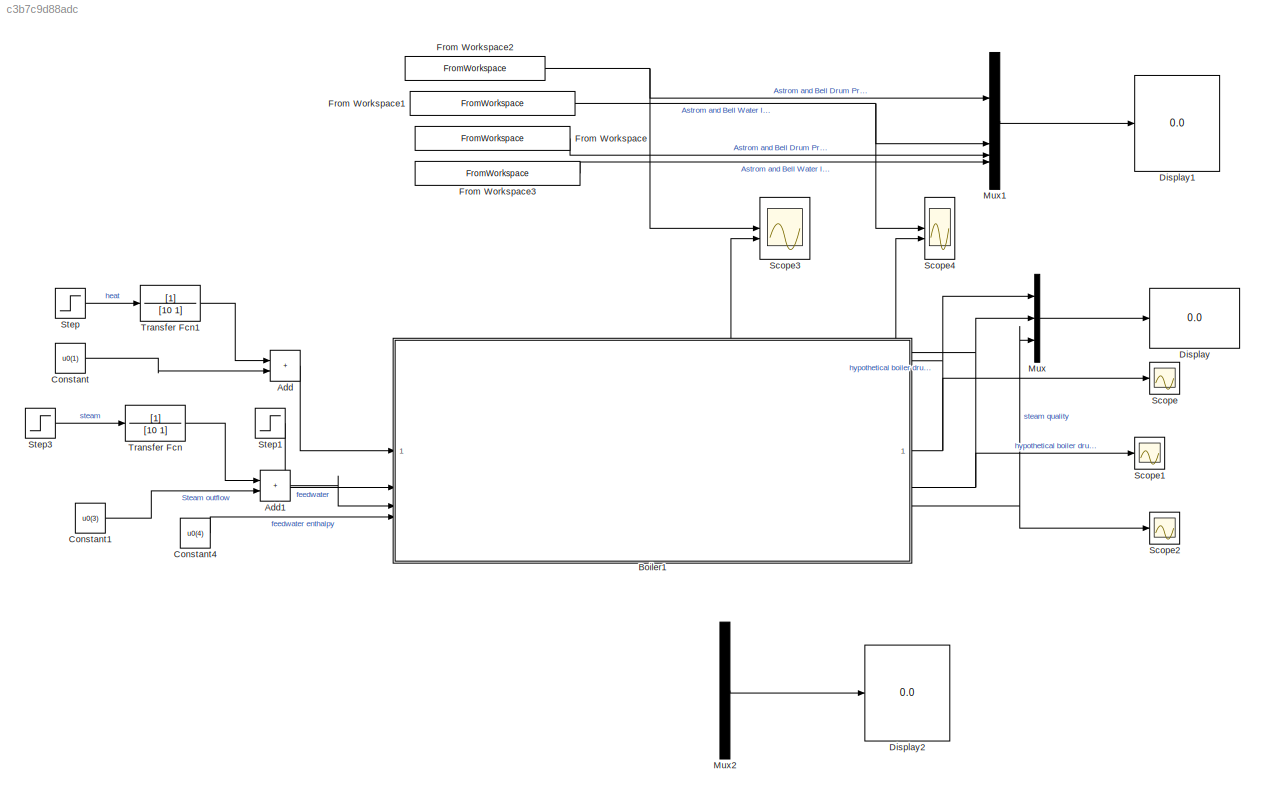
MODEL slx_c3b7c9d88adc
KIND model
CONFIG AbsTol = auto
CONFIG EnableMultiTasking = off
CONFIG FixedStep = 1000
CONFIG MaxStep = auto
CONFIG MinStep = auto
CONFIG RelTol = 1e-2
CONFIG SampleTimeConstraint = Unconstrained
CONFIG SolverName = ode15s
CONFIG StartTime = 0.0
CONFIG StopTime = 180
BLOCK [Sum] Add
  IconShape = rectangular
BLOCK [Sum] Add1
  IconShape = rectangular
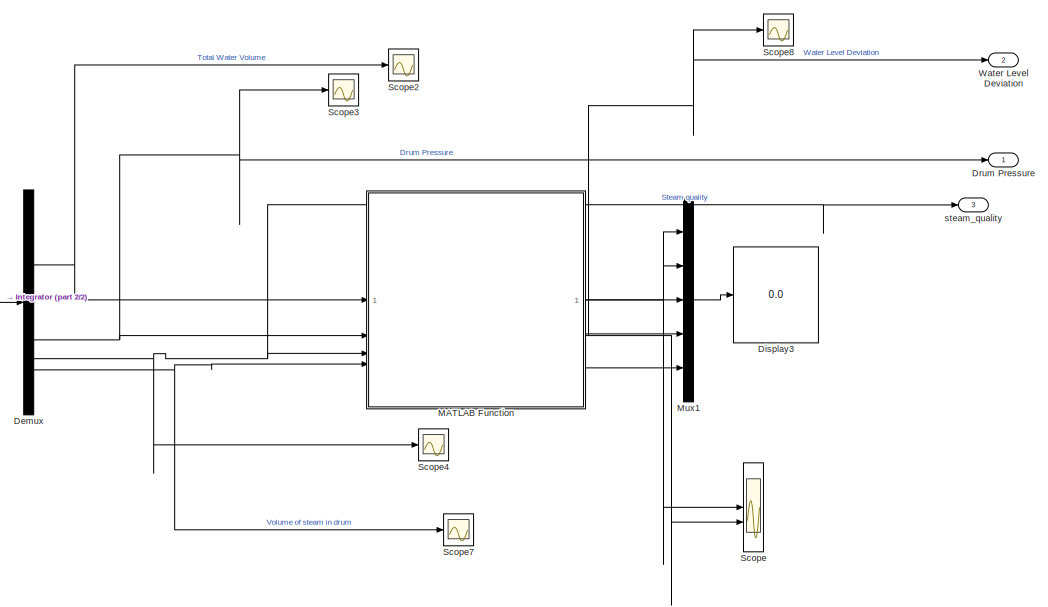
[diagram: Boiler1 - part 1/2, right side, full height]
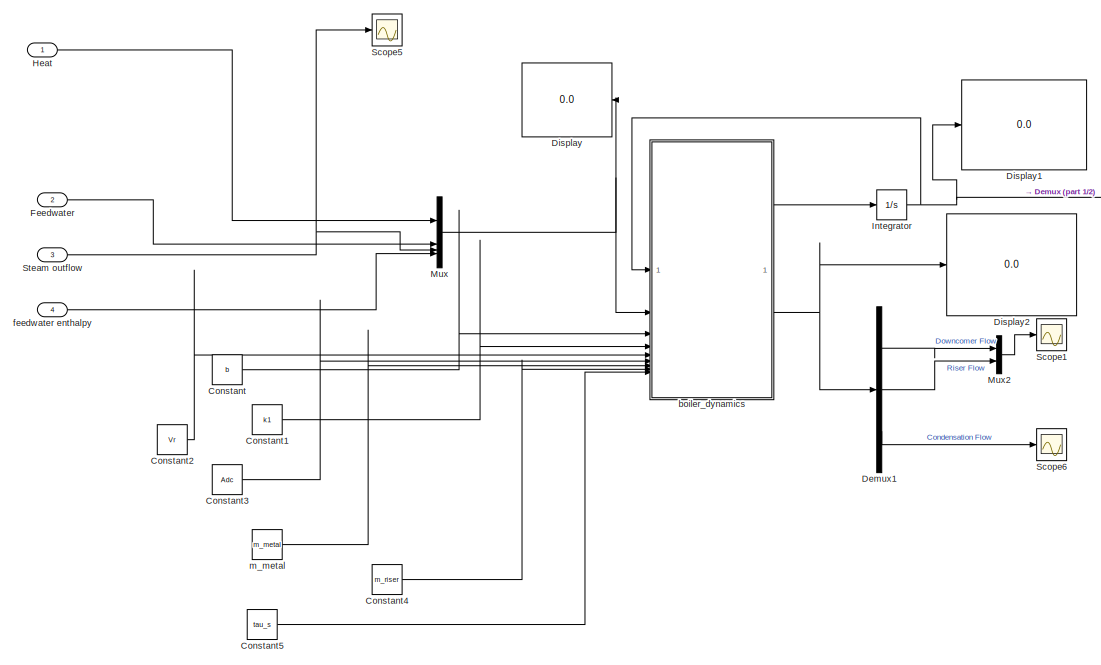
[diagram: Boiler1 - part 2/2, left side, full height]
BLOCK [SubSystem] Boiler1
BLOCK [Constant] Boiler1/Constant
  Value = b
BLOCK [Constant] Boiler1/Constant1
  Value = k1
BLOCK [Constant] Boiler1/Constant2
  Value = Vr
BLOCK [Constant] Boiler1/Constant3
  Value = Adc
BLOCK [Constant] Boiler1/Constant4
  Value = m_riser
BLOCK [Constant] Boiler1/Constant5
  Value = tau_s
BLOCK [Demux] Boiler1/Demux
BLOCK [Demux] Boiler1/Demux1
  Outputs = 3
BLOCK [Display] Boiler1/Display
  Decimation = 1
  Format = long
  NameLocation = top
BLOCK [Display] Boiler1/Display1
  Decimation = 1
  Format = long
BLOCK [Display] Boiler1/Display2
  Decimation = 1
BLOCK [Display] Boiler1/Display3
  Decimation = 1
BLOCK [Outport] Boiler1/Drum Pressure
BLOCK [Inport] Boiler1/Feedwater
  Port = 2
BLOCK [Inport] Boiler1/Heat
BLOCK [Integrator] Boiler1/Integrator
  InitialCondition = x0
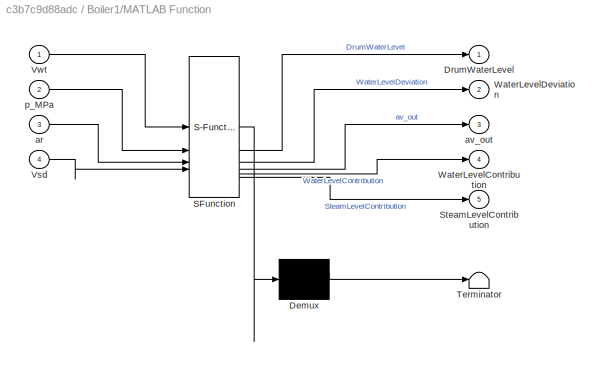
BLOCK [SubSystem] Boiler1/MATLAB Function
  ErrorFcn = Stateflow.Translate.translate
  PermitHierarchicalResolution = ExplicitOnly
  SFBlockType = MATLAB Function
  TreatAsAtomicUnit = on
BLOCK [Demux] Boiler1/MATLAB Function/ Demux 
  Outputs = 1
BLOCK [S-Function] Boiler1/MATLAB Function/ SFunction 
  EnableBusSupport = off
  FunctionName = sf_sfun
  PortCounts = [4 6]
  SFcnIsStateOwnerBlock = off
  SFunctionDeploymentMode = off
  Tag = Stateflow S-Function 1
BLOCK [Terminator] Boiler1/MATLAB Function/ Terminator 
BLOCK [Outport] Boiler1/MATLAB Function/DrumWaterLevel
BLOCK [Outport] Boiler1/MATLAB Function/SteamLevelContribution
  Port = 5
BLOCK [Inport] Boiler1/MATLAB Function/Vsd
  Port = 4
BLOCK [Inport] Boiler1/MATLAB Function/Vwt
BLOCK [Outport] Boiler1/MATLAB Function/WaterLevelContribution
  Port = 4
BLOCK [Outport] Boiler1/MATLAB Function/WaterLevelDeviation
  Port = 2
BLOCK [Inport] Boiler1/MATLAB Function/ar
  Port = 3
BLOCK [Outport] Boiler1/MATLAB Function/av_out
  Port = 3
BLOCK [Inport] Boiler1/MATLAB Function/p_MPa
  Port = 2
BLOCK [Mux] Boiler1/Mux
  DisplayOption = bar
BLOCK [Mux] Boiler1/Mux1
  DisplayOption = bar
  Inputs = 5
BLOCK [Mux] Boiler1/Mux2
  DisplayOption = bar
  Inputs = 2
BLOCK [Scope] Boiler1/Scope
  ActiveDisplayYMaximum = 0.97989716685186512
  ActiveDisplayYMinimum = -0.11553187271684388
  DataLoggingVariableName = ScopeData9
  Floating = off
  GraphicalSettings = {"Style":{"BackgroundColor":[0.12941176470588237,0.12941176470588237,0.12941176470588237],"AxesColor":[0.07058823529411765,0.07058823529411765,0.07058823529411765],"LabelsColor":[0.8509803921568627,0.8509803921568627,0.8509803921568627],"PreserveColors":false,"Visible":[true,true],"LineStyle":["-","-"],"LineWidth":[1.5,1.5],"BarWidth":[0.9,0.9],"LineColor":["auto","auto"],"LineFaceAlpha":[1,1],"Li...<+2188ch>
  MultipleDisplayCache = [{"MaxYLimMag":0.97989716685186512,"MaxYLimReal":0.97989716685186512,"MinYLimMag":0,"MinYLimReal":-0.11553187271684388,"PlotAsMagnitudePhase":false,"ShowGrid":true,"ShowLegend":true,"Title":"%<SignalLabel>","YLabel":""}]
  NumInputPorts = 2
  ScopeFrameLocation = window
  ShowLegend = on
  WasSavedAsWebScope = on
  WindowPosition = [-2.000000,34.000000,1284.000000,661.000000,]
BLOCK [Scope] Boiler1/Scope1
  ActiveDisplayYMaximum = 1360.0825647224879
  ActiveDisplayYMinimum = 1149.8937170235527
  DataLoggingVariableName = ScopeData6
  Floating = off
  GraphicalSettings = {"Style":{"BackgroundColor":[0.12941176470588237,0.12941176470588237,0.12941176470588237],"AxesColor":[0.07058823529411765,0.07058823529411765,0.07058823529411765],"LabelsColor":[0.8509803921568627,0.8509803921568627,0.8509803921568627],"PreserveColors":false,"Visible":[true,true],"LineStyle":["-","-"],"LineWidth":[1.5,1.5],"BarWidth":[0.9,0.9],"LineColor":["auto","auto"],"LineFaceAlpha":[1,1],"Li...<+2168ch>
  MultipleDisplayCache = [{"MaxYLimMag":1357.3396218709104,"MaxYLimReal":1360.0825647224879,"MinYLimMag":1151.0852850425513,"MinYLimReal":1149.8937170235527,"PlotAsMagnitudePhase":false,"ShowGrid":true,"ShowLegend":false,"Title":"%<SignalLabel>","YLabel":""}]
  NumInputPorts = 1
  ScopeFrameLocation = window
  WasSavedAsWebScope = on
  WindowPosition = [1.000000,49.000000,1279.000000,649.000000,]
BLOCK [Scope] Boiler1/Scope2
  DataLoggingVariableName = ScopeData1
  Floating = off
  GraphicalSettings = {"GraphicalSettings":{"LegacySettings":true,"Style":{"Style":{"PlotType":"Auto"}}}}
  NumInputPorts = 1
  WasSavedAsWebScope = on
BLOCK [Scope] Boiler1/Scope3
  ActiveDisplayYMaximum = 8.869653644083332
  ActiveDisplayYMinimum = 5.1731172032500083
  Floating = off
  GraphicalSettings = {"Style":{"BackgroundColor":[0.12941176470588237,0.12941176470588237,0.12941176470588237],"AxesColor":[0.07058823529411765,0.07058823529411765,0.07058823529411765],"LabelsColor":[0.8509803921568627,0.8509803921568627,0.8509803921568627],"PreserveColors":false,"Visible":[true],"LineStyle":["-"],"LineWidth":[1.5],"BarWidth":[0.9],"LineColor":["auto"],"LineFaceAlpha":[1],"LineEdgeAlpha":[1],"Marker":...<+2315ch>
  MultipleDisplayCache = [{"MaxYLimMag":8.869653644083332,"MaxYLimReal":8.869653644083332,"MinYLimMag":5.1731172032500083,"MinYLimReal":5.1731172032500083,"PlotAsMagnitudePhase":false,"ShowGrid":true,"ShowLegend":true,"Title":"%<SignalLabel>","YLabel":""}]
  NumInputPorts = 1
  ScopeFrameLocation = window
  ShowLegend = on
  WasSavedAsWebScope = on
  WindowPosition = [322.000000,50.000000,636.000000,640.000000,]
BLOCK [Scope] Boiler1/Scope4
  DataLoggingVariableName = ScopeData2
  Floating = off
  GraphicalSettings = {"GraphicalSettings":{"LegacySettings":true,"Style":{"Style":{"PlotType":"Auto"}}}}
  NumInputPorts = 1
  WasSavedAsWebScope = on
BLOCK [Scope] Boiler1/Scope5
  ActiveDisplayYMaximum = 87.68969538020076
  ActiveDisplayYMinimum = 81.783639946245515
  DataLoggingVariableName = ScopeData3
  Floating = off
  GraphicalSettings = {"AxesScalingProperties":{"AlignXAxis":"Center","AlignYAxis":"Center","AutoScaleXAxisLimits":false,"AxesScaling":"Manual","AxesScalingNumUpdates":10,"ExpandOnly":true,"ScaleAxesLimitsAtStop":false,"XAxisDataRange":100,"YAxisDataRange":80},"DisplayProperties":{"ColorOrder":["auto","auto","auto","auto","auto","auto","auto","auto","auto","auto","auto","auto","auto","auto","auto","auto","auto","auto",...<+2039ch>
  MultipleDisplayCache = [{"MaxYLimMag":94.81221872444533,"MaxYLimReal":87.68969538020076,"MinYLimMag":74.81221872444533,"MinYLimReal":81.783639946245515,"PlotAsMagnitudePhase":false,"ShowGrid":true,"ShowLegend":false,"Title":"%<SignalLabel>","YLabel":""}]
  NumInputPorts = 1
  ScopeFrameLocation = window
  WasSavedAsWebScope = on
  WindowPosition = [-960.000000,-5.000000,493.000000,696.000000,]
BLOCK [Scope] Boiler1/Scope6
  DataLoggingVariableName = ScopeData4
  Floating = off
  GraphicalSettings = {"GraphicalSettings":{"LegacySettings":true,"Style":{"Style":{"PlotType":"Auto"}}}}
  NumInputPorts = 1
  WasSavedAsWebScope = on
BLOCK [Scope] Boiler1/Scope7
  DataLoggingVariableName = ScopeData5
  Floating = off
  GraphicalSettings = {"GraphicalSettings":{"LegacySettings":true,"Style":{"Style":{"PlotType":"Auto"}}}}
  NumInputPorts = 1
  WasSavedAsWebScope = on
BLOCK [Scope] Boiler1/Scope8
  ActiveDisplayYMaximum = 0.12332586369569878
  ActiveDisplayYMinimum = -0.31931831052985321
  DataLoggingVariableName = ScopeData8
  Floating = off
  GraphicalSettings = {"Style":{"BackgroundColor":[0.12941176470588237,0.12941176470588237,0.12941176470588237],"AxesColor":[0.07058823529411765,0.07058823529411765,0.07058823529411765],"LabelsColor":[0.8509803921568627,0.8509803921568627,0.8509803921568627],"PreserveColors":false,"Visible":[true],"LineStyle":["-"],"LineWidth":[1.5],"BarWidth":[0.9],"LineColor":["auto"],"LineFaceAlpha":[1],"LineEdgeAlpha":[1],"Marker":...<+2283ch>
  MultipleDisplayCache = [{"MaxYLimMag":0.31931831052985321,"MaxYLimReal":0.12332586369569878,"MinYLimMag":0,"MinYLimReal":-0.31931831052985321,"PlotAsMagnitudePhase":false,"ShowGrid":true,"ShowLegend":true,"Title":"%<SignalLabel>","YLabel":""}]
  NumInputPorts = 1
  ScopeFrameLocation = window
  ShowLegend = on
  WasSavedAsWebScope = on
  WindowPosition = [322.000000,50.000000,636.000000,640.000000,]
BLOCK [Inport] Boiler1/Steam outflow
  Port = 3
BLOCK [Outport] Boiler1/Water Level Deviation
  Port = 2
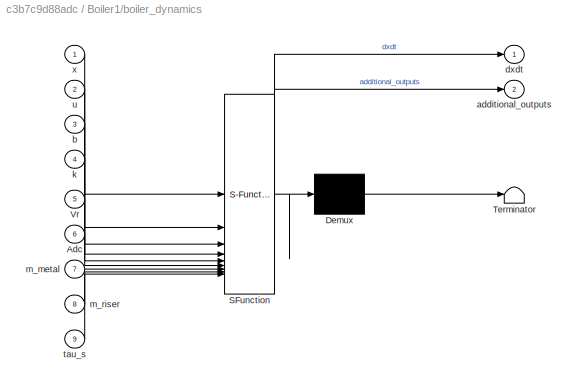
BLOCK [SubSystem] Boiler1/boiler_dynamics
  ErrorFcn = Stateflow.Translate.translate
  PermitHierarchicalResolution = ExplicitOnly
  SFBlockType = MATLAB Function
  TreatAsAtomicUnit = on
BLOCK [Demux] Boiler1/boiler_dynamics/ Demux 
  Outputs = 1
BLOCK [S-Function] Boiler1/boiler_dynamics/ SFunction 
  EnableBusSupport = off
  FunctionName = sf_sfun
  PortCounts = [9 3]
  SFcnIsStateOwnerBlock = off
  SFunctionDeploymentMode = off
  Tag = Stateflow S-Function 2
BLOCK [Terminator] Boiler1/boiler_dynamics/ Terminator 
BLOCK [Inport] Boiler1/boiler_dynamics/Adc
  Port = 6
BLOCK [Inport] Boiler1/boiler_dynamics/Vr
  Port = 5
BLOCK [Outport] Boiler1/boiler_dynamics/additional_outputs
  Port = 2
BLOCK [Inport] Boiler1/boiler_dynamics/b
  Port = 3
BLOCK [Outport] Boiler1/boiler_dynamics/dxdt
BLOCK [Inport] Boiler1/boiler_dynamics/k
  Port = 4
BLOCK [Inport] Boiler1/boiler_dynamics/m_metal
  Port = 7
BLOCK [Inport] Boiler1/boiler_dynamics/m_riser
  Port = 8
BLOCK [Inport] Boiler1/boiler_dynamics/tau_s
  Port = 9
BLOCK [Inport] Boiler1/boiler_dynamics/u
  Port = 2
BLOCK [Inport] Boiler1/boiler_dynamics/x
BLOCK [Inport] Boiler1/feedwater enthalpy
  Port = 4
BLOCK [Constant] Boiler1/m_metal 
  Value = m_metal
BLOCK [Outport] Boiler1/steam_quality
  Port = 3
BLOCK [Constant] Constant
  Value = u0(1)
BLOCK [Constant] Constant1
  Value = u0(3)
BLOCK [Constant] Constant4
  Value = u0(4)
BLOCK [Display] Display
  Decimation = 1
BLOCK [Display] Display1
  Decimation = 1
BLOCK [Display] Display2
  Decimation = 1
BLOCK [FromWorkspace] From Workspace
  VariableName = Steam_Flow_Step_Drum_pressure_ts
BLOCK [FromWorkspace] From Workspace1
  VariableName = Heat_Step_Drum_water_Level_ts
BLOCK [FromWorkspace] From Workspace2
  VariableName = Heat_Step_Drum_Pressure_ts
BLOCK [FromWorkspace] From Workspace3
  VariableName = Steam_Flow_Step_Drum_water_Level_ts
BLOCK [Mux] Mux
  DisplayOption = bar
  Inputs = 3
BLOCK [Mux] Mux1
  DisplayOption = bar
BLOCK [Mux] Mux2
  DisplayOption = bar
BLOCK [Scope] Scope
  DataLoggingVariableName = ScopeData7
  Floating = off
  GraphicalSettings = {"GraphicalSettings":{"LegacySettings":true,"Style":{"Style":{"PlotType":"Auto"}}}}
  NumInputPorts = 1
  WasSavedAsWebScope = on
BLOCK [Scope] Scope1
  ActiveDisplayYMaximum = 1
  ActiveDisplayYMinimum = -1
  DataLoggingVariableName = ScopeData10
  Floating = off
  GraphicalSettings = {"Style":{"BackgroundColor":[0.12941176470588237,0.12941176470588237,0.12941176470588237],"AxesColor":[0.07058823529411765,0.07058823529411765,0.07058823529411765],"LabelsColor":[0.8509803921568627,0.8509803921568627,0.8509803921568627],"PreserveColors":false,"Visible":[true],"LineStyle":["-"],"LineWidth":[1.5],"BarWidth":[0.9],"LineColor":["auto"],"LineFaceAlpha":[1],"LineEdgeAlpha":[1],"Marker":...<+1895ch>
  MultipleDisplayCache = [{"MaxYLimMag":1,"MaxYLimReal":1,"MinYLimMag":0,"MinYLimReal":-1,"PlotAsMagnitudePhase":false,"ShowGrid":true,"ShowLegend":false,"Title":"%<SignalLabel>","YLabel":""}]
  NumInputPorts = 1
  ScopeFrameLocation = window
  WasSavedAsWebScope = on
  WindowPosition = [360.000000,150.000000,560.000000,420.000000,]
BLOCK [Scope] Scope2
  DataLoggingVariableName = ScopeData11
  Floating = off
  GraphicalSettings = {"GraphicalSettings":{"LegacySettings":true,"Style":{"Style":{"PlotType":"Auto"}}}}
  NumInputPorts = 1
  WasSavedAsWebScope = on
BLOCK [Scope] Scope3
  ActiveDisplayYMaximum = 8.8300659694282047
  ActiveDisplayYMinimum = 8.4630372129045046
  DataLoggingVariableName = ScopeData12
  DisplayFullPath = on
  Floating = off
  GraphicalSettings = {"Style":{"BackgroundColor":[0.12941176470588237,0.12941176470588237,0.12941176470588237],"AxesColor":[0.07058823529411765,0.07058823529411765,0.07058823529411765],"LabelsColor":[0.8509803921568627,0.8509803921568627,0.8509803921568627],"PreserveColors":false,"Visible":[true,true],"LineStyle":["-","-"],"LineWidth":[1.5,1.5],"BarWidth":[0.9,0.9],"LineColor":["auto","auto"],"LineFaceAlpha":[1,1],"Li...<+2232ch>
  MultipleDisplayCache = [{"MaxYLimMag":8.8300659694282047,"MaxYLimReal":8.8300659694282047,"MinYLimMag":8.4630372129045046,"MinYLimReal":8.4630372129045046,"PlotAsMagnitudePhase":false,"ShowGrid":true,"ShowLegend":true,"Title":"%<SignalLabel>","YLabel":""}]
  NumInputPorts = 2
  ScopeFrameLocation = window
  ShowLegend = on
  WasSavedAsWebScope = on
  WindowPosition = [-1596.000000,-115.000000,1285.000000,662.000000,]
BLOCK [Scope] Scope4
  DataLoggingVariableName = ScopeData13
  Floating = off
  GraphicalSettings = {"GraphicalSettings":{"LegacySettings":true,"Style":{"Style":{"PlotType":"Auto"}}}}
  NumInputPorts = 2
  WasSavedAsWebScope = on
BLOCK [Step] Step
  After = u0(1)*0.1
  SampleTime = 0
  Time = 500
BLOCK [Step] Step1
  After = u0(2)+00
  Before = u0(2)
  SampleTime = 0
  Time = 50
BLOCK [Step] Step3
  After = u0(3)*0.1-u0(3)*0.1
  SampleTime = 0
  Time = 50
BLOCK [TransferFcn] Transfer Fcn
  Denominator = [10 1]
BLOCK [TransferFcn] Transfer Fcn1
  Denominator = [10 1]
LINE Add1:1 -> Boiler1:3
LINE Add:1 -> Boiler1:1
LINE Boiler1/Constant1:1 -> Boiler1/boiler_dynamics:4
LINE Boiler1/Constant2:1 -> Boiler1/boiler_dynamics:5
LINE Boiler1/Constant3:1 -> Boiler1/boiler_dynamics:6
LINE Boiler1/Constant4:1 -> Boiler1/boiler_dynamics:8
LINE Boiler1/Constant5:1 -> Boiler1/boiler_dynamics:9
LINE Boiler1/Constant:1 -> Boiler1/boiler_dynamics:3
LINE Boiler1/Demux1:1 -> Boiler1/Mux2:1
LINE Boiler1/Demux1:2 -> Boiler1/Mux2:2
LINE Boiler1/Demux1:3 -> Boiler1/Scope6:1
NET Boiler1/Demux:1 -> Boiler1/MATLAB Function:1, Boiler1/Scope2:1
NET Boiler1/Demux:2 -> Boiler1/Drum Pressure:1, Boiler1/MATLAB Function:2, Boiler1/Scope3:1
NET Boiler1/Demux:3 -> Boiler1/MATLAB Function:3, Boiler1/Scope4:1, Boiler1/steam_quality:1
NET Boiler1/Demux:4 -> Boiler1/MATLAB Function:4, Boiler1/Scope7:1
LINE Boiler1/Feedwater:1 -> Boiler1/Mux:2
LINE Boiler1/Heat:1 -> Boiler1/Mux:1
NET Boiler1/Integrator:1 -> Boiler1/Demux:1, Boiler1/Display1:1, Boiler1/boiler_dynamics:1
NET Boiler1/MATLAB Function:1 -> Boiler1/Mux1:1, Boiler1/Scope:1
NET Boiler1/MATLAB Function:2 -> Boiler1/Mux1:2, Boiler1/Scope8:1, Boiler1/Scope:2, Boiler1/Water Level Deviation:1
LINE Boiler1/MATLAB Function:3 -> Boiler1/Mux1:3
LINE Boiler1/MATLAB Function:4 -> Boiler1/Mux1:4
LINE Boiler1/MATLAB Function:5 -> Boiler1/Mux1:5
LINE Boiler1/Mux1:1 -> Boiler1/Display3:1
LINE Boiler1/Mux2:1 -> Boiler1/Scope1:1
NET Boiler1/Mux:1 -> Boiler1/Display:1, Boiler1/boiler_dynamics:2
NET Boiler1/Steam outflow:1 -> Boiler1/Mux:3, Boiler1/Scope5:1
LINE Boiler1/boiler_dynamics:1 -> Boiler1/Integrator:1
NET Boiler1/boiler_dynamics:2 -> Boiler1/Demux1:1, Boiler1/Display2:1
LINE Boiler1/feedwater enthalpy:1 -> Boiler1/Mux:4
LINE Boiler1/m_metal :1 -> Boiler1/boiler_dynamics:7
NET Boiler1:1 -> Mux:1, Scope3:2, Scope:1
NET Boiler1:2 -> Mux:2, Scope1:1, Scope4:2
NET Boiler1:3 -> Mux:3, Scope2:1
LINE Constant1:1 -> Add1:2
LINE Constant4:1 -> Boiler1:4
LINE Constant:1 -> Add:2
NET From Workspace1:1 -> Mux1:2, Scope4:1
NET From Workspace2:1 -> Mux1:1, Scope3:1
LINE From Workspace3:1 -> Mux1:4
LINE From Workspace:1 -> Mux1:3
LINE Mux1:1 -> Display1:1
LINE Mux2:1 -> Display2:1
LINE Mux:1 -> Display:1
LINE Step1:1 -> Boiler1:2
LINE Step3:1 -> Transfer Fcn:1
LINE Step:1 -> Transfer Fcn1:1
LINE Transfer Fcn1:1 -> Add:1
LINE Transfer Fcn:1 -> Add1:1
note: NET lines group one-source signal fan-out (src -> all destinations, sorted); 1:1 wires keep LINE
CHART Boiler1/MATLAB Function states=1 transitions=1
  STATE_LABEL 'eML_blk_kernel()'
  STATE_LABEL 'SCRIPT:\nfunction [DrumWaterLevel, WaterLevelDeviation, av_out, WaterLevelContribution, SteamLevelContribution] = drum_level(Vwt, p_MPa, ar, Vsd)\n\n\n[DrumWaterLevel, WaterLevelDeviation, av_out, WaterLevelContribution, SteamLevelContribution] = calculate_level(Vwt, p_MPa, ar, Vsd)'
CHART Boiler1/boiler_dynamics states=1 transitions=1
  STATE_LABEL 'eML_blk_kernel()'
  STATE_LABEL 'SCRIPT:\nfunction [dxdt, additional_outputs] = boiler(x, u, b, k, Vr, Adc, m_metal, m_riser, tau_s)\n%#codegen\n% Wrapper that calls the external boiler dynamics function.\n[dxdt, additional_outputs] = boiler_dynamics_block( ...\n    x, u, b, k, Vr, Adc, m_metal, m_riser, tau_s );\n'
CHART  states=0 transitions=0
CHART  states=0 transitions=0
